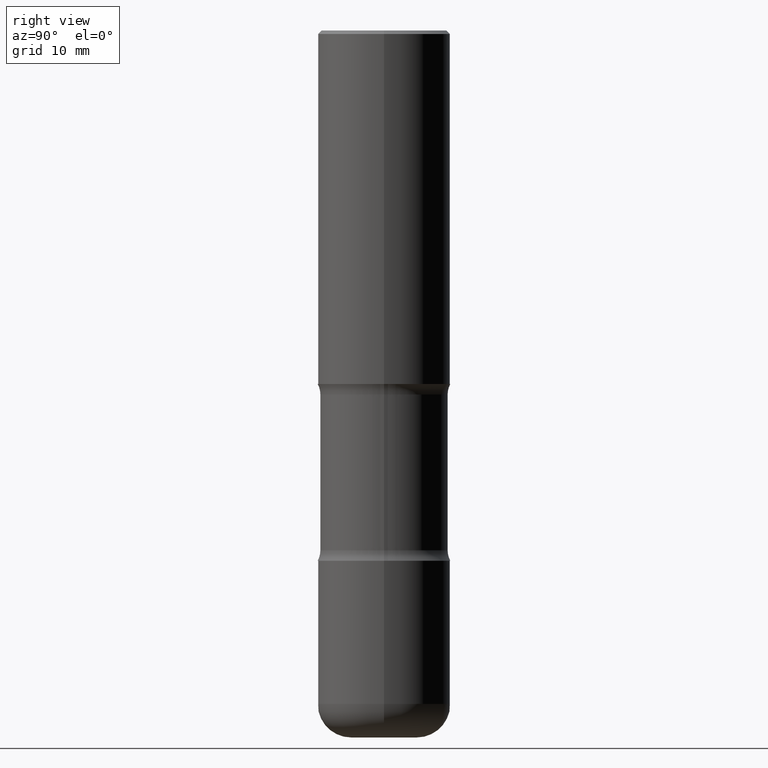
[diagram: clean part render]
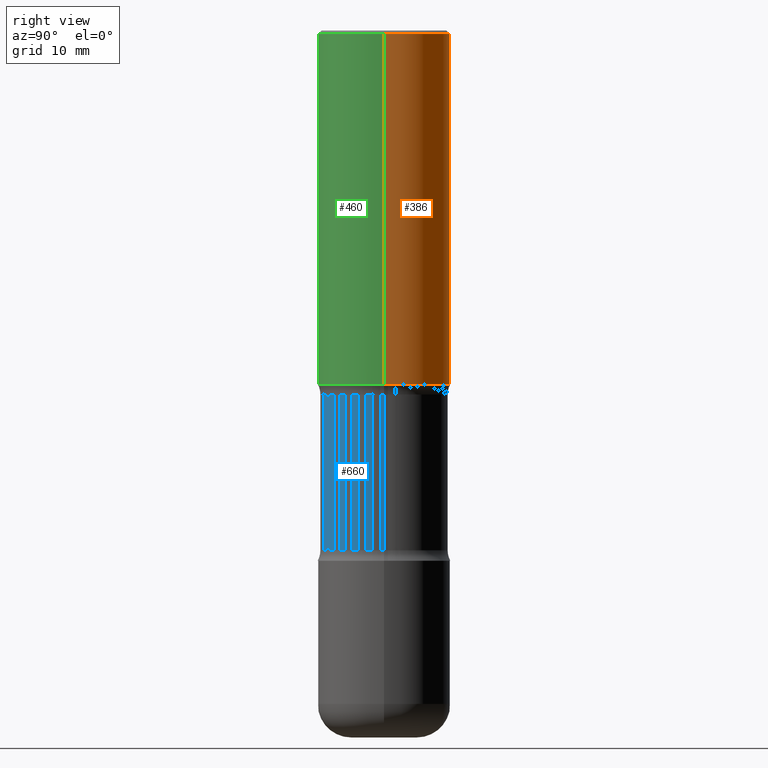
[diagram: same view with three faces highlighted in distinct colors, each labeled with its STEP entity id]
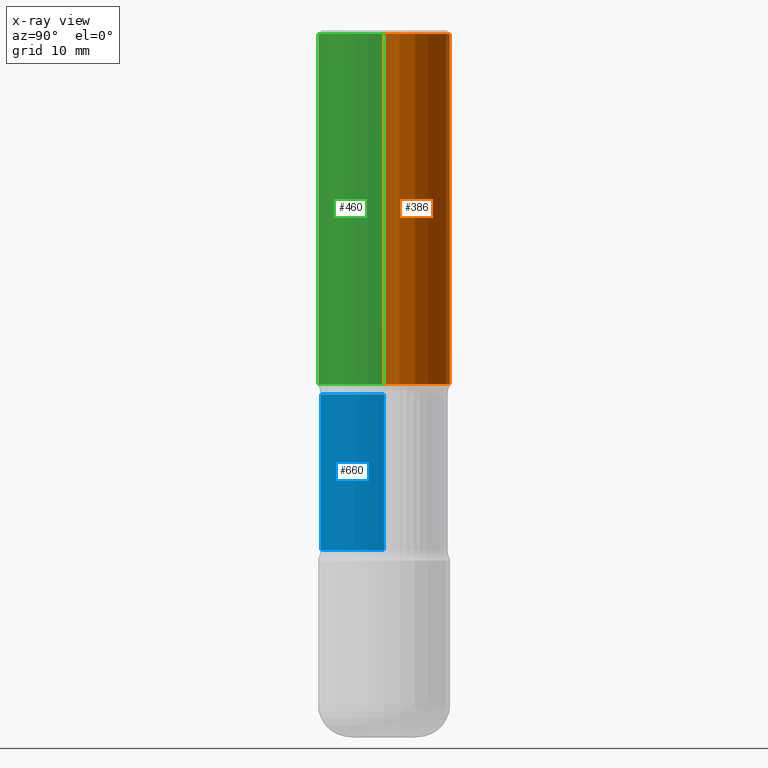
[diagram: x-ray of the same camera — body ghosted, the three highlighted faces saturated]
A machine part, right view with three faces highlighted in distinct colors.
The next image is the same camera in x-ray (body ghosted, the three faces saturated) — at least one of them is partly hidden behind the body in this view.
Their STEP definitions:

[orange] entity #386 — the highlighted cylindrical surface (partial cylindrical patch) has radius 9.525 mm, axis along (-0, 0, 1).
#4 = DIRECTION ( 'NONE',  ( 1.000000000000000000, -6.982962677686265922E-15, 4.876176775795935793E-29 ) ) ;
#9 = VECTOR ( 'NONE', #82, 39.37007874015748143 ) ;
#29 = EDGE_CURVE ( 'NONE', #731, #620, #294, .T. ) ;
#38 = DIRECTION ( 'NONE',  ( -2.445468806185136877E-29, 3.491481338843145188E-15, 1.000000000000000000 ) ) ;
#70 = CARTESIAN_POINT ( 'NONE',  ( 0.000000000000000000, 0.000000000000000000, 0.000000000000000000 ) ) ;
#80 = VERTEX_POINT ( 'NONE', #651 ) ;
#82 = DIRECTION ( 'NONE',  ( -2.445468806185136877E-29, 3.491481338843145188E-15, 1.000000000000000000 ) ) ;
#87 = CARTESIAN_POINT ( 'NONE',  ( 4.890937612370292426E-31, -6.982962677686317493E-17, -0.02000000000000007674 ) ) ;
#141 = FACE_OUTER_BOUND ( 'NONE', #698, .T. ) ;
#152 = LINE ( 'NONE', #766, #9 ) ;
#162 = EDGE_CURVE ( 'NONE', #80, #755, #269, .T. ) ;
#198 = ORIENTED_EDGE ( 'NONE', *, *, #29, .F. ) ;
#210 = DIRECTION ( 'NONE',  ( -2.445468806185136597E-29, 3.491481338843145583E-15, 1.000000000000000000 ) ) ;
#257 = ORIENTED_EDGE ( 'NONE', *, *, #162, .T. ) ;
#269 = CIRCLE ( 'NONE', #398, 0.3750000000000000555 ) ;
#278 = DIRECTION ( 'NONE',  ( -2.445468806185136597E-29, 3.491481338843145583E-15, 1.000000000000000000 ) ) ;
#294 = CIRCLE ( 'NONE', #323, 0.3749999999999996669 ) ;
#296 = CARTESIAN_POINT ( 'NONE',  ( -0.3749999999999996669, 2.548781377355484352E-15, -0.02000000000000007674 ) ) ;
#314 = CARTESIAN_POINT ( 'NONE',  ( 0.3749999999999996669, -2.642516375941185662E-15, -0.02000000000000007674 ) ) ;
#320 = DIRECTION ( 'NONE',  ( -2.445468806185136597E-29, 3.491481338843145583E-15, 1.000000000000000000 ) ) ;
#323 = AXIS2_PLACEMENT_3D ( 'NONE', #87, #278, #719 ) ;
#345 = ORIENTED_EDGE ( 'NONE', *, *, #420, .T. ) ;
#386 = ADVANCED_FACE ( 'NONE', ( #141 ), #442, .T. ) ;
#398 = AXIS2_PLACEMENT_3D ( 'NONE', #664, #210, #720 ) ;
#420 = EDGE_CURVE ( 'NONE', #755, #620, #152, .T. ) ;
#437 = CARTESIAN_POINT ( 'NONE',  ( -0.3749999999999999445, -8.618608931312003514E-16, -2.000000000000000000 ) ) ;
#442 = CYLINDRICAL_SURFACE ( 'NONE', #644, 0.3749999999999998335 ) ;
#465 = VECTOR ( 'NONE', #38, 39.37007874015748143 ) ;
#620 = VERTEX_POINT ( 'NONE', #296 ) ;
#644 = AXIS2_PLACEMENT_3D ( 'NONE', #70, #320, #4 ) ;
#651 = CARTESIAN_POINT ( 'NONE',  ( 0.3750000000000000555, -9.601573681818640393E-15, -2.000000000000000000 ) ) ;
#662 = EDGE_CURVE ( 'NONE', #80, #731, #730, .T. ) ;
#664 = CARTESIAN_POINT ( 'NONE',  ( 4.890937612370273194E-29, -6.982962677686291165E-15, -2.000000000000000000 ) ) ;
#694 = ORIENTED_EDGE ( 'NONE', *, *, #662, .F. ) ;
#698 = EDGE_LOOP ( 'NONE', ( #257, #345, #198, #694 ) ) ;
#719 = DIRECTION ( 'NONE',  ( 1.000000000000000000, -6.982962677686266711E-15, 0.000000000000000000 ) ) ;
#720 = DIRECTION ( 'NONE',  ( 1.000000000000000000, -6.982962677686264344E-15, 0.000000000000000000 ) ) ;
#730 = LINE ( 'NONE', #793, #465 ) ;
#731 = VERTEX_POINT ( 'NONE', #314 ) ;
#755 = VERTEX_POINT ( 'NONE', #437 ) ;
#766 = CARTESIAN_POINT ( 'NONE',  ( -0.3749999999999998335, 2.664535259100374514E-15, -1.844600658845588757E-29 ) ) ;
#793 = CARTESIAN_POINT ( 'NONE',  ( 0.3749999999999998335, -2.618611004132348439E-15, 1.828566290923475082E-29 ) ) ;

[blue] entity #660 — the highlighted cylindrical surface (partial cylindrical patch) has radius 9.144 mm, axis along (-0, 0, 1).
#7 = CIRCLE ( 'NONE', #339, 0.3599999999999998757 ) ;
#51 = ORIENTED_EDGE ( 'NONE', *, *, #376, .F. ) ;
#111 = AXIS2_PLACEMENT_3D ( 'NONE', #733, #316, #667 ) ;
#128 = CARTESIAN_POINT ( 'NONE',  ( 0.3599999999999998757, -9.704124460693012319E-15, -2.059371710435190295 ) ) ;
#139 = VERTEX_POINT ( 'NONE', #226 ) ;
#144 = EDGE_LOOP ( 'NONE', ( #382, #166, #480, #51 ) ) ;
#149 = LINE ( 'NONE', #352, #535 ) ;
#166 = ORIENTED_EDGE ( 'NONE', *, *, #219, .T. ) ;
#167 = CARTESIAN_POINT ( 'NONE',  ( -0.3599999999999998757, -4.425008828949931380E-15, -2.000000000000000000 ) ) ;
#172 = EDGE_CURVE ( 'NONE', #652, #347, #149, .T. ) ;
#178 = CYLINDRICAL_SURFACE ( 'NONE', #594, 0.3599999999999998757 ) ;
#186 = EDGE_CURVE ( 'NONE', #566, #139, #510, .T. ) ;
#219 = EDGE_CURVE ( 'NONE', #566, #652, #413, .T. ) ;
#226 = CARTESIAN_POINT ( 'NONE',  ( -0.3599999999999998757, -4.475365733287755283E-15, -2.059371710435190295 ) ) ;
#236 = DIRECTION ( 'NONE',  ( 1.000000000000000000, -6.982962677686267499E-15, 0.000000000000000000 ) ) ;
#316 = DIRECTION ( 'NONE',  ( -2.445468806185136597E-29, 3.491481338843145583E-15, 1.000000000000000000 ) ) ;
#339 = AXIS2_PLACEMENT_3D ( 'NONE', #488, #481, #236 ) ;
#347 = VERTEX_POINT ( 'NONE', #128 ) ;
#352 = CARTESIAN_POINT ( 'NONE',  ( 0.3599999999999998757, -9.496829241653347023E-15, -2.000000000000000000 ) ) ;
#355 = CARTESIAN_POINT ( 'NONE',  ( 4.890937612370273194E-29, -6.982962677686291165E-15, -2.000000000000000000 ) ) ;
#376 = EDGE_CURVE ( 'NONE', #139, #347, #7, .T. ) ;
#382 = ORIENTED_EDGE ( 'NONE', *, *, #186, .F. ) ;
#394 = DIRECTION ( 'NONE',  ( -2.445468806185136877E-29, 3.491481338843145188E-15, 1.000000000000000000 ) ) ;
#400 = VECTOR ( 'NONE', #394, 39.37007874015748143 ) ;
#413 = CIRCLE ( 'NONE', #111, 0.3599999999999999312 ) ;
#417 = DIRECTION ( 'NONE',  ( -2.445468806185136597E-29, 3.491481338843145583E-15, 1.000000000000000000 ) ) ;
#425 = FACE_OUTER_BOUND ( 'NONE', #144, .T. ) ;
#472 = DIRECTION ( 'NONE',  ( -2.445468806185136877E-29, 3.491481338843145188E-15, 1.000000000000000000 ) ) ;
#476 = DIRECTION ( 'NONE',  ( 1.000000000000000000, -6.982962677686267499E-15, 0.000000000000000000 ) ) ;
#479 = CARTESIAN_POINT ( 'NONE',  ( -0.3599999999999999312, -7.759551853091235175E-15, -2.940628289564810149 ) ) ;
#480 = ORIENTED_EDGE ( 'NONE', *, *, #172, .T. ) ;
#481 = DIRECTION ( 'NONE',  ( -2.445468806185136597E-29, 3.491481338843145583E-15, 1.000000000000000000 ) ) ;
#488 = CARTESIAN_POINT ( 'NONE',  ( 5.036129278209386779E-29, -7.190257896725955672E-15, -2.059371710435190295 ) ) ;
#510 = LINE ( 'NONE', #167, #400 ) ;
#535 = VECTOR ( 'NONE', #472, 39.37007874015748143 ) ;
#543 = CARTESIAN_POINT ( 'NONE',  ( 0.3599999999999999312, -1.278101536145682770E-14, -2.940628289564810149 ) ) ;
#566 = VERTEX_POINT ( 'NONE', #479 ) ;
#594 = AXIS2_PLACEMENT_3D ( 'NONE', #355, #417, #476 ) ;
#652 = VERTEX_POINT ( 'NONE', #543 ) ;
#660 = ADVANCED_FACE ( 'NONE', ( #425 ), #178, .T. ) ;
#667 = DIRECTION ( 'NONE',  ( 1.000000000000000000, -6.982962677686269866E-15, 0.000000000000000000 ) ) ;
#733 = CARTESIAN_POINT ( 'NONE',  ( 7.191214752716296204E-29, -1.026714879748977264E-14, -2.940628289564810149 ) ) ;

[green] entity #460 — the highlighted cylindrical surface (partial cylindrical patch) has radius 9.525 mm, axis along (-0, 0, 1).
#9 = VECTOR ( 'NONE', #82, 39.37007874015748143 ) ;
#38 = DIRECTION ( 'NONE',  ( -2.445468806185136877E-29, 3.491481338843145188E-15, 1.000000000000000000 ) ) ;
#69 = ORIENTED_EDGE ( 'NONE', *, *, #662, .T. ) ;
#80 = VERTEX_POINT ( 'NONE', #651 ) ;
#82 = DIRECTION ( 'NONE',  ( -2.445468806185136877E-29, 3.491481338843145188E-15, 1.000000000000000000 ) ) ;
#99 = DIRECTION ( 'NONE',  ( -2.445468806185136597E-29, 3.491481338843145583E-15, 1.000000000000000000 ) ) ;
#126 = AXIS2_PLACEMENT_3D ( 'NONE', #270, #706, #379 ) ;
#135 = CYLINDRICAL_SURFACE ( 'NONE', #126, 0.3749999999999998335 ) ;
#150 = ORIENTED_EDGE ( 'NONE', *, *, #692, .F. ) ;
#152 = LINE ( 'NONE', #766, #9 ) ;
#254 = CARTESIAN_POINT ( 'NONE',  ( 4.890937612370273194E-29, -6.982962677686291165E-15, -2.000000000000000000 ) ) ;
#259 = DIRECTION ( 'NONE',  ( 1.000000000000000000, -6.982962677686264344E-15, 0.000000000000000000 ) ) ;
#270 = CARTESIAN_POINT ( 'NONE',  ( 0.000000000000000000, 0.000000000000000000, 0.000000000000000000 ) ) ;
#285 = CIRCLE ( 'NONE', #670, 0.3749999999999996669 ) ;
#296 = CARTESIAN_POINT ( 'NONE',  ( -0.3749999999999996669, 2.548781377355484352E-15, -0.02000000000000007674 ) ) ;
#308 = DIRECTION ( 'NONE',  ( -2.445468806185136597E-29, 3.491481338843145583E-15, 1.000000000000000000 ) ) ;
#314 = CARTESIAN_POINT ( 'NONE',  ( 0.3749999999999996669, -2.642516375941185662E-15, -0.02000000000000007674 ) ) ;
#379 = DIRECTION ( 'NONE',  ( 1.000000000000000000, -6.982962677686265922E-15, 4.876176775795935793E-29 ) ) ;
#420 = EDGE_CURVE ( 'NONE', #755, #620, #152, .T. ) ;
#437 = CARTESIAN_POINT ( 'NONE',  ( -0.3749999999999999445, -8.618608931312003514E-16, -2.000000000000000000 ) ) ;
#454 = EDGE_LOOP ( 'NONE', ( #569, #606, #69, #150 ) ) ;
#458 = FACE_OUTER_BOUND ( 'NONE', #454, .T. ) ;
#460 = ADVANCED_FACE ( 'NONE', ( #458 ), #135, .T. ) ;
#465 = VECTOR ( 'NONE', #38, 39.37007874015748143 ) ;
#554 = CIRCLE ( 'NONE', #658, 0.3750000000000000555 ) ;
#569 = ORIENTED_EDGE ( 'NONE', *, *, #420, .F. ) ;
#588 = DIRECTION ( 'NONE',  ( 1.000000000000000000, -6.982962677686266711E-15, 0.000000000000000000 ) ) ;
#606 = ORIENTED_EDGE ( 'NONE', *, *, #717, .T. ) ;
#620 = VERTEX_POINT ( 'NONE', #296 ) ;
#651 = CARTESIAN_POINT ( 'NONE',  ( 0.3750000000000000555, -9.601573681818640393E-15, -2.000000000000000000 ) ) ;
#658 = AXIS2_PLACEMENT_3D ( 'NONE', #254, #308, #259 ) ;
#661 = CARTESIAN_POINT ( 'NONE',  ( 4.890937612370292426E-31, -6.982962677686317493E-17, -0.02000000000000007674 ) ) ;
#662 = EDGE_CURVE ( 'NONE', #80, #731, #730, .T. ) ;
#670 = AXIS2_PLACEMENT_3D ( 'NONE', #661, #99, #588 ) ;
#692 = EDGE_CURVE ( 'NONE', #620, #731, #285, .T. ) ;
#706 = DIRECTION ( 'NONE',  ( -2.445468806185136597E-29, 3.491481338843145583E-15, 1.000000000000000000 ) ) ;
#717 = EDGE_CURVE ( 'NONE', #755, #80, #554, .T. ) ;
#730 = LINE ( 'NONE', #793, #465 ) ;
#731 = VERTEX_POINT ( 'NONE', #314 ) ;
#755 = VERTEX_POINT ( 'NONE', #437 ) ;
#766 = CARTESIAN_POINT ( 'NONE',  ( -0.3749999999999998335, 2.664535259100374514E-15, -1.844600658845588757E-29 ) ) ;
#793 = CARTESIAN_POINT ( 'NONE',  ( 0.3749999999999998335, -2.618611004132348439E-15, 1.828566290923475082E-29 ) ) ;